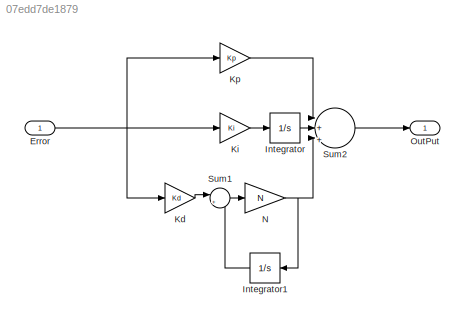
MODEL slx_07edd7de1879
KIND model
CONFIG AbsTol = auto
CONFIG EnableMultiTasking = off
CONFIG FixedStep = auto
CONFIG MaxStep = auto
CONFIG MinStep = auto
CONFIG RelTol = 1e-3
CONFIG SampleTimeConstraint = Unconstrained
CONFIG SolverName = VariableStepAuto
CONFIG StartTime = 0.0
CONFIG StopTime = 0.05
WORKSPACE source: mxarray member
WORKSPACE Kd = 0.48976
WORKSPACE Ki = 4810.143
WORKSPACE Kp = 97.11
WORKSPACE N = 100000
BLOCK [Inport] Error
  OutDataTypeStr = double
  PortDimensions = 1
  SampleTime = 0
  SamplingMode = Sample based
  SignalType = real
BLOCK [Integrator] Integrator
  Ports = [1, 1]
BLOCK [Integrator] Integrator1
  NameLocation = top
  Ports = [1, 1]
BLOCK [Gain] Kd
  Gain = Kd
BLOCK [Gain] Ki
  Gain = Ki
BLOCK [Gain] Kp
  Gain = Kp
BLOCK [Gain] N
  Gain = N
BLOCK [Outport] OutPut
  OutDataTypeStr = double
  PortDimensions = 1
  SampleTime = 0
  SamplingMode = Sample based
  SignalType = real
BLOCK [Sum] Sum1
  Inputs = |+-
  Ports = [2, 1]
BLOCK [Sum] Sum2
  Inputs = |+|+|+|
  Ports = [3, 1]
NET Error:1 -> Kd:1, Ki:1, Kp:1
LINE Integrator1:1 -> Sum1:2
LINE Integrator:1 -> Sum2:2
LINE Kd:1 -> Sum1:1
LINE Ki:1 -> Integrator:1
LINE Kp:1 -> Sum2:1
NET N:1 -> Integrator1:1, Sum2:3
LINE Sum1:1 -> N:1
LINE Sum2:1 -> OutPut:1
note: NET lines group one-source signal fan-out (src -> all destinations, sorted); 1:1 wires keep LINE
